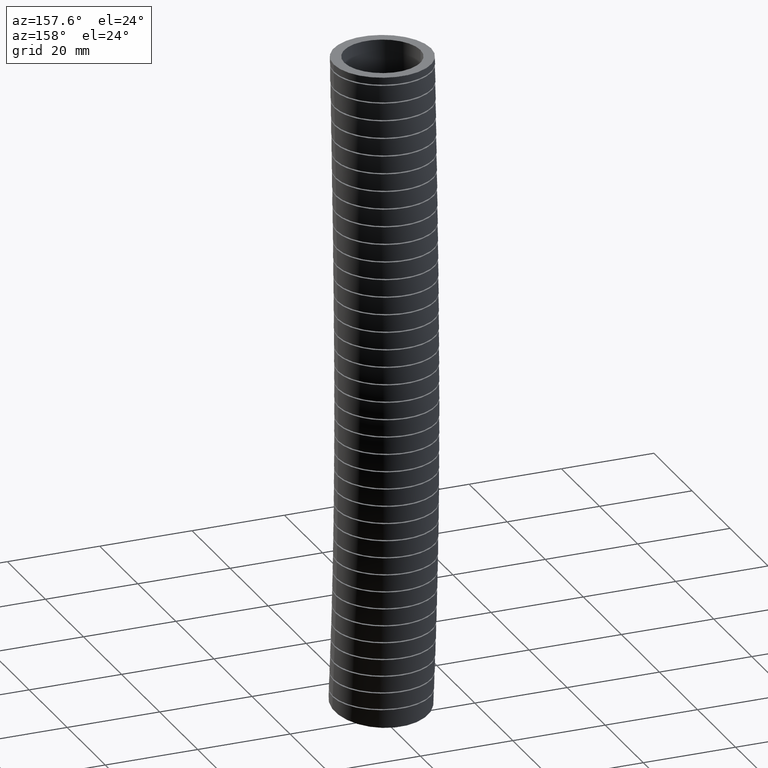
[diagram: clean part render]
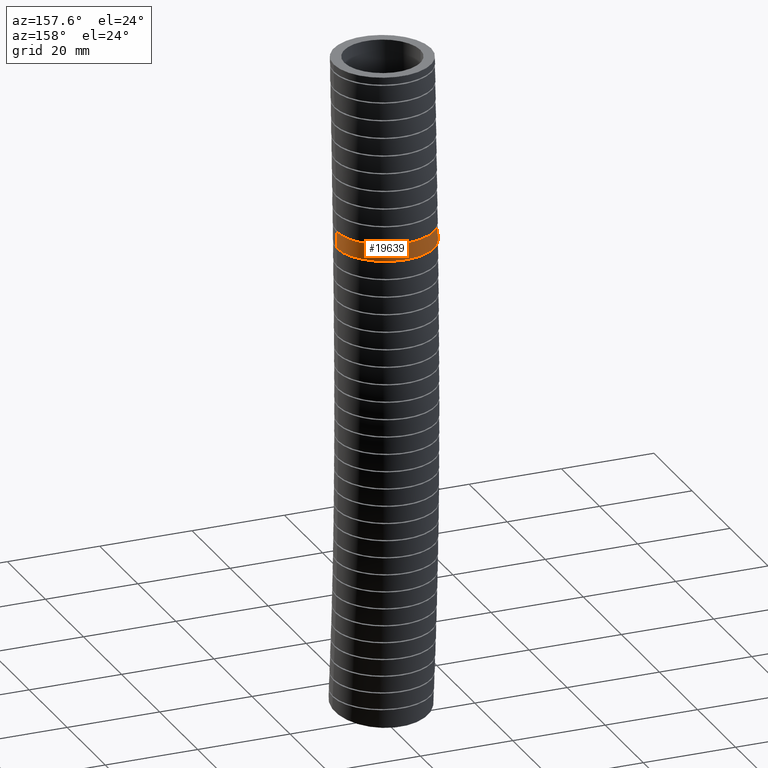
[diagram: same view with one face highlighted and labeled with its STEP entity id]
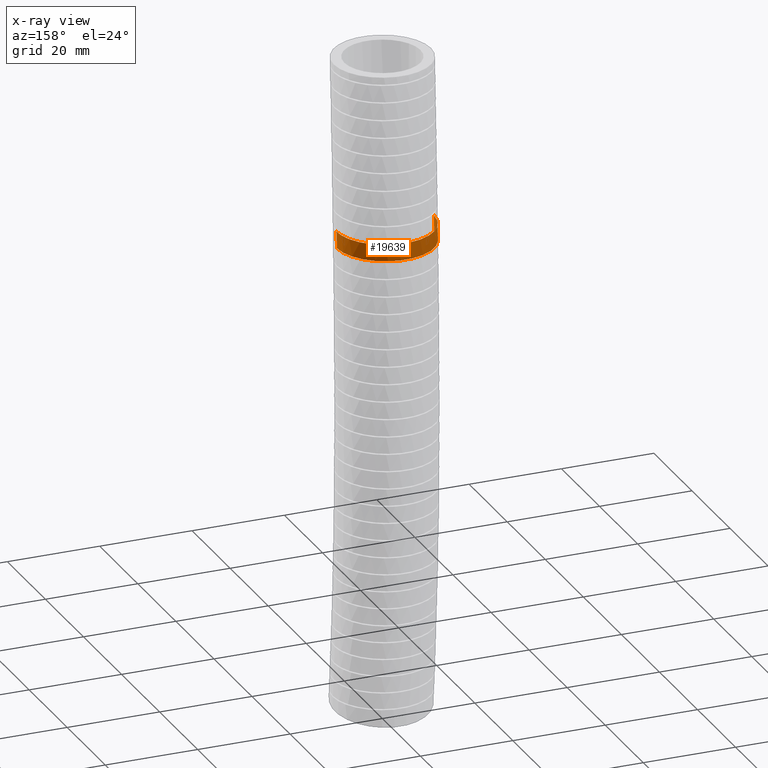
[diagram: x-ray of the same camera — body ghosted, the highlighted face saturated]
A machine part, auxiliary view. The second image highlights one B-rep face of the part: STEP entity #19639.
The next image is the same camera in x-ray: the body ghosted, the highlighted face saturated — about 0% of this face is hidden behind the body in this view.
In plain terms, the highlighted face is a freeform B-spline surface patch.
Its self-contained STEP definition (entity closure, byte-faithful):
#127 = ORIENTED_EDGE ( 'NONE', *, *, #702, .F. ) ;
#128 = EDGE_LOOP ( 'NONE', ( #127, #15384, #15188, #19652 ) ) ;
#677 = VERTEX_POINT ( 'NONE', #9962 ) ;
#699 = VERTEX_POINT ( 'NONE', #10130 ) ;
#702 = EDGE_CURVE ( 'NONE', #706, #703, #10273, .T. ) ;
#703 = VERTEX_POINT ( 'NONE', #10271 ) ;
#706 = VERTEX_POINT ( 'NONE', #10300 ) ;
#707 = EDGE_CURVE ( 'NONE', #677, #699, #10296, .T. ) ;
#5275 = FACE_OUTER_BOUND ( 'NONE', #128, .T. ) ;
#5317 = CARTESIAN_POINT ( 'NONE',  ( 0.4150000000000000400, -0.7627651118616902700, -4.486822042548080700 ) ) ;
#5318 = CARTESIAN_POINT ( 'NONE',  ( 0.4150000000000000400, -0.7092540105308221500, -2.690209918970475100 ) ) ;
#5319 = CARTESIAN_POINT ( 'NONE',  ( 0.4150000000000000900, -0.7836011148550242600, -1.033763039210906500 ) ) ;
#5320 = CARTESIAN_POINT ( 'NONE',  ( 0.4150000000000000900, -0.8300000000000001800, 0.0000000000000000000 ) ) ;
#5321 = CARTESIAN_POINT ( 'NONE',  ( 0.4150000000000000400, -0.03000000000000001600, -5.569999999999998500 ) ) ;
#5323 = CARTESIAN_POINT ( 'NONE',  ( 0.4150000000000000900, -0.01243844818931303500, -5.380037381098891700 ) ) ;
#5324 = CARTESIAN_POINT ( 'NONE',  ( 0.4150000000000000900, 0.06281132015026588700, -4.566063580857106200 ) ) ;
#5325 = CARTESIAN_POINT ( 'NONE',  ( 0.4149999999999999200, 0.1218071073635319700, -2.711443563840852700 ) ) ;
#5326 = CARTESIAN_POINT ( 'NONE',  ( 0.4150000000000000900, 0.04680663936954134600, -1.041922460934817000 ) ) ;
#5327 = CARTESIAN_POINT ( 'NONE',  ( 0.4150000000000000900, 0.0000000000000000000, 0.0000000000000000000 ) ) ;
#5334 =( BOUNDED_SURFACE ( )  B_SPLINE_SURFACE ( 3, 3, ( 
 ( #5327, #5326, #5325, #5324, #5323, #5321 ),
 ( #5320, #5319, #5318, #5317, #5368, #5367 ),
 ( #5366, #5365, #5364, #5363, #5362, #5361 ),
 ( #5360, #5359, #5358, #5357, #5356, #5355 ),
 ( #5354, #5353, #5352, #5351, #5350, #5349 ),
 ( #5348, #5347, #5346, #5345, #5344, #5343 ),
 ( #5342, #5341, #5340, #5339, #5338, #5337 ) ),
 .UNSPECIFIED., .F., .F., .F. ) 
 B_SPLINE_SURFACE_WITH_KNOTS ( ( 4, 3, 4 ),
 ( 4, 1, 1, 4 ),
 ( 0.0000000000000000000, 0.5000000000000000000, 1.000000000000000000 ),
 ( 0.0000000000000000000, 0.5600000000000000500, 0.8973141982067990300, 1.000000000000000000 ),
 .UNSPECIFIED. ) 
 GEOMETRIC_REPRESENTATION_ITEM ( )  RATIONAL_B_SPLINE_SURFACE ( (
 ( 1.000000000000000000, 1.000000000000000000, 1.000000000000000000, 1.000000000000000000, 1.000000000000000000, 1.000000000000000000),
 ( 0.3333333333333333100, 0.3333333333333333100, 0.3333333333333333100, 0.3333333333333333100, 0.3333333333333332600, 0.3333333333333333100),
 ( 0.3333333333333333100, 0.3333333333333333100, 0.3333333333333333100, 0.3333333333333333100, 0.3333333333333332600, 0.3333333333333333100),
 ( 1.000000000000000000, 1.000000000000000000, 1.000000000000000000, 1.000000000000000000, 1.000000000000000000, 1.000000000000000000),
 ( 0.3333333333333333100, 0.3333333333333333100, 0.3333333333333333100, 0.3333333333333333100, 0.3333333333333332600, 0.3333333333333333100),
 ( 0.3333333333333333100, 0.3333333333333333100, 0.3333333333333333100, 0.3333333333333333100, 0.3333333333333332600, 0.3333333333333333100),
 ( 1.000000000000000000, 1.000000000000000000, 1.000000000000000000, 1.000000000000000000, 1.000000000000000000, 1.000000000000000000) ) ) 
 REPRESENTATION_ITEM ( '' )  SURFACE ( )  );
#5337 = CARTESIAN_POINT ( 'NONE',  ( 0.4150000000000000400, -0.03000000000000001600, -5.569999999999998500 ) ) ;
#5338 = CARTESIAN_POINT ( 'NONE',  ( 0.4150000000000000900, -0.01243844818931303500, -5.380037381098891700 ) ) ;
#5339 = CARTESIAN_POINT ( 'NONE',  ( 0.4150000000000000900, 0.06281132015026588700, -4.566063580857106200 ) ) ;
#5340 = CARTESIAN_POINT ( 'NONE',  ( 0.4149999999999999200, 0.1218071073635319700, -2.711443563840852700 ) ) ;
#5341 = CARTESIAN_POINT ( 'NONE',  ( 0.4150000000000000900, 0.04680663936954134600, -1.041922460934817000 ) ) ;
#5342 = CARTESIAN_POINT ( 'NONE',  ( 0.4150000000000000900, 0.0000000000000000000, 0.0000000000000000000 ) ) ;
#5343 = CARTESIAN_POINT ( 'NONE',  ( 0.4150000000000000400, 0.7922141346493595200, -5.683419208173947200 ) ) ;
#5344 = CARTESIAN_POINT ( 'NONE',  ( 0.4150000000000002000, 0.8104118928973711400, -5.486989566509566700 ) ) ;
#5345 = CARTESIAN_POINT ( 'NONE',  ( 0.4150000000000000400, 0.8883877521622221000, -4.645305119166129900 ) ) ;
#5346 = CARTESIAN_POINT ( 'NONE',  ( 0.4150000000000000400, 0.9528682252578860600, -2.732677208711230800 ) ) ;
#5347 = CARTESIAN_POINT ( 'NONE',  ( 0.4150000000000000900, 0.8772143935941071300, -1.050081882658727000 ) ) ;
#5348 = CARTESIAN_POINT ( 'NONE',  ( 0.4150000000000000900, 0.8300000000000001800, 0.0000000000000000000 ) ) ;
#5349 = CARTESIAN_POINT ( 'NONE',  ( -0.4149999999999999200, 0.7922141346493595200, -5.683419208173947200 ) ) ;
#5350 = CARTESIAN_POINT ( 'NONE',  ( -0.4150000000000000400, 0.8104118928973711400, -5.486989566509566700 ) ) ;
#5351 = CARTESIAN_POINT ( 'NONE',  ( -0.4149999999999999200, 0.8883877521622221000, -4.645305119166129900 ) ) ;
#5352 = CARTESIAN_POINT ( 'NONE',  ( -0.4149999999999999200, 0.9528682252578860600, -2.732677208711230800 ) ) ;
#5353 = CARTESIAN_POINT ( 'NONE',  ( -0.4149999999999999200, 0.8772143935941071300, -1.050081882658727000 ) ) ;
#5354 = CARTESIAN_POINT ( 'NONE',  ( -0.4150000000000000400, 0.8300000000000001800, 0.0000000000000000000 ) ) ;
#5355 = CARTESIAN_POINT ( 'NONE',  ( -0.4150000000000000400, -0.02999999999999996800, -5.569999999999998500 ) ) ;
#5356 = CARTESIAN_POINT ( 'NONE',  ( -0.4150000000000000900, -0.01243844818931298000, -5.380037381098891700 ) ) ;
#5357 = CARTESIAN_POINT ( 'NONE',  ( -0.4150000000000000900, 0.06281132015026594200, -4.566063580857106200 ) ) ;
#5358 = CARTESIAN_POINT ( 'NONE',  ( -0.4149999999999999200, 0.1218071073635320100, -2.711443563840852700 ) ) ;
#5359 = CARTESIAN_POINT ( 'NONE',  ( -0.4150000000000000900, 0.04680663936954139500, -1.041922460934817000 ) ) ;
#5360 = CARTESIAN_POINT ( 'NONE',  ( -0.4150000000000000900, 5.082284216461516900E-017, 0.0000000000000000000 ) ) ;
#5361 = CARTESIAN_POINT ( 'NONE',  ( -0.4150000000000000900, -0.8522141346493592500, -5.456580791826050700 ) ) ;
#5362 = CARTESIAN_POINT ( 'NONE',  ( -0.4150000000000002000, -0.8352887892759974800, -5.273085195688222100 ) ) ;
#5363 = CARTESIAN_POINT ( 'NONE',  ( -0.4150000000000000900, -0.7627651118616902700, -4.486822042548080700 ) ) ;
#5364 = CARTESIAN_POINT ( 'NONE',  ( -0.4150000000000000400, -0.7092540105308221500, -2.690209918970475100 ) ) ;
#5365 = CARTESIAN_POINT ( 'NONE',  ( -0.4150000000000000900, -0.7836011148550242600, -1.033763039210906500 ) ) ;
#5366 = CARTESIAN_POINT ( 'NONE',  ( -0.4150000000000000900, -0.8300000000000001800, 0.0000000000000000000 ) ) ;
#5367 = CARTESIAN_POINT ( 'NONE',  ( 0.4150000000000000400, -0.8522141346493592500, -5.456580791826050700 ) ) ;
#5368 = CARTESIAN_POINT ( 'NONE',  ( 0.4150000000000002000, -0.8352887892759974800, -5.273085195688222100 ) ) ;
#5631 = CARTESIAN_POINT ( 'NONE',  ( -0.2530480296697572600, 0.3930098631821943900, -1.558745690570982400 ) ) ;
#5632 = CARTESIAN_POINT ( 'NONE',  ( -0.2420183854522029200, 0.4012025832483722100, -1.558745690570981100 ) ) ;
#5633 = CARTESIAN_POINT ( 'NONE',  ( -0.2079953799857171800, 0.4239492426593599600, -1.558745690570980900 ) ) ;
#5634 = CARTESIAN_POINT ( 'NONE',  ( -0.1841409775019460200, 0.4366920484936032700, -1.558745690570980900 ) ) ;
#5635 = CARTESIAN_POINT ( 'NONE',  ( -0.1466424309258130600, 0.4522598473942761000, -1.558745690570981300 ) ) ;
#5636 = CARTESIAN_POINT ( 'NONE',  ( -0.1338547111090290000, 0.4568538169216500600, -1.558745690570982700 ) ) ;
#5637 = CARTESIAN_POINT ( 'NONE',  ( -0.1076844076745166300, 0.4648130424854946000, -1.558745690570982700 ) ) ;
#5638 = CARTESIAN_POINT ( 'NONE',  ( -0.09441587613805650600, 0.4681382022034298900, -1.558745690570981300 ) ) ;
#5639 = CARTESIAN_POINT ( 'NONE',  ( -0.05452458177354133100, 0.4760878549364622700, -1.558745690570981100 ) ) ;
#5640 = CARTESIAN_POINT ( 'NONE',  ( -0.02763124873732881000, 0.4787633537436413700, -1.558745690570982200 ) ) ;
#5641 = CARTESIAN_POINT ( 'NONE',  ( 0.01316132861774301100, 0.4788062237595002700, -1.558745690570982000 ) ) ;
#5642 = CARTESIAN_POINT ( 'NONE',  ( 0.02690503160815264900, 0.4781431039985693000, -1.558745690570981100 ) ) ;
#5643 = CARTESIAN_POINT ( 'NONE',  ( 0.05401535565871507700, 0.4754877283855035200, -1.558745690570981100 ) ) ;
#5644 = CARTESIAN_POINT ( 'NONE',  ( 0.06742087615956440800, 0.4735027468085092300, -1.558745690570981300 ) ) ;
#5645 = CARTESIAN_POINT ( 'NONE',  ( 0.1071986118086044000, 0.4656202789456790300, -1.558745690570981300 ) ) ;
#5646 = CARTESIAN_POINT ( 'NONE',  ( 0.1331363142419370300, 0.4578142147985411700, -1.558745690570981100 ) ) ;
#5647 = CARTESIAN_POINT ( 'NONE',  ( 0.1838011139505479600, 0.4368845569489011600, -1.558745690570981100 ) ) ;
#5648 = CARTESIAN_POINT ( 'NONE',  ( 0.2076944669633723800, 0.4241039006592391400, -1.558745690570980000 ) ) ;
#5649 = CARTESIAN_POINT ( 'NONE',  ( 0.2414360814785000100, 0.4016144037911879000, -1.558745690570980400 ) ) ;
#5650 = CARTESIAN_POINT ( 'NONE',  ( 0.2523326078176387800, 0.3935600190301745100, -1.558745690570981600 ) ) ;
#5651 = CARTESIAN_POINT ( 'NONE',  ( 0.2734084412545565400, 0.3763102430458227200, -1.558745690570982200 ) ) ;
#5652 = CARTESIAN_POINT ( 'NONE',  ( 0.2836137943189495100, 0.3670791682988576700, -1.558745690570980400 ) ) ;
#5653 = CARTESIAN_POINT ( 'NONE',  ( 0.3124862738769199600, 0.3382524385800725900, -1.558745690570981300 ) ) ;
#5654 = CARTESIAN_POINT ( 'NONE',  ( 0.3296487723175474700, 0.3173742912554553500, -1.558745690570980900 ) ) ;
#5655 = CARTESIAN_POINT ( 'NONE',  ( 0.3522929406101922300, 0.2835897846059329300, -1.558745690570980400 ) ) ;
#5656 = CARTESIAN_POINT ( 'NONE',  ( 0.3593417700886814600, 0.2718743705796292700, -1.558745690570980900 ) ) ;
#5657 = CARTESIAN_POINT ( 'NONE',  ( 0.3722644896321220500, 0.2477587841385151800, -1.558745690570981100 ) ) ;
#5658 = CARTESIAN_POINT ( 'NONE',  ( 0.3780806080155281200, 0.2354763999878228500, -1.558745690570982400 ) ) ;
#5659 = CARTESIAN_POINT ( 'NONE',  ( 0.3936540415104261000, 0.1979766384407226600, -1.558745690570982400 ) ) ;
#5660 = CARTESIAN_POINT ( 'NONE',  ( 0.4015541706315150500, 0.1721128252505605700, -1.558745690570982700 ) ) ;
#5661 = CARTESIAN_POINT ( 'NONE',  ( 0.4095936908385555100, 0.1319907139541683400, -1.558745690570982200 ) ) ;
#5662 = CARTESIAN_POINT ( 'NONE',  ( 0.4116257368884618800, 0.1183970458522912200, -1.558745690570980200 ) ) ;
#5663 = CARTESIAN_POINT ( 'NONE',  ( 0.4143224466391948700, 0.09120927082526174300, -1.558745690570980400 ) ) ;
#5664 = CARTESIAN_POINT ( 'NONE',  ( 0.4150000000000000900, 0.07755948595522385600, -1.558745690378915900 ) ) ;
#5665 = CARTESIAN_POINT ( 'NONE',  ( 0.4150000000000000900, 0.06385324110268690600, -1.558745690378915900 ) ) ;
#5666 = B_SPLINE_CURVE_WITH_KNOTS ( 'NONE', 3,
 ( #5665, #5664, #5663, #5662, #5661, #5660, #5659, #5658, #5657, #5656, #5655, #5654, #5653, #5652, #5651, #5650, #5649, #5648, #5647, #5646, #5645, #5644, #5643, #5642, #5641, #5640, #5639, #5638, #5637, #5636, #5635, #5634, #5633, #5632, #5631, #5709, #5708, #5707, #5706, #5705, #5704, #5703, #5702, #5701, #5700, #5699, #5698, #5697, #5696 ),
 .UNSPECIFIED., .F., .F.,
 ( 4, 2, 2, 2, 2, 2, 2, 2, 2, 2, 2, 2, 2, 2, 2, 2, 2, 2, 1, 2, 2, 2, 2, 2, 4 ),
 ( 0.0000000000000000000, 0.001040808548537697300, 0.002081617097075394600, 0.004163234194150791000, 0.005204042742688487800, 0.006244851291226185600, 0.008326468388301581900, 0.009367276936839280500, 0.01040808548537697600, 0.01248970258245237300, 0.01457131967952776800, 0.01561212822806546500, 0.01665293677660316400, 0.01873455387367856100, 0.01977536242221625600, 0.02081617097075395100, 0.02289778806782934500, 0.02393859661636704400, 0.02497940516490474200, 0.02602021371344244100, 0.02706102226198013600, 0.02914263935905553300, 0.03018344790759323200, 0.03122425645613092700, 0.03330587355320632800 ),
 .UNSPECIFIED. ) ;
#5696 = CARTESIAN_POINT ( 'NONE',  ( -0.4150000000000000900, 0.06385324111537978000, -1.558745690570981600 ) ) ;
#5697 = CARTESIAN_POINT ( 'NONE',  ( -0.4150000000000000400, 0.09103404013532480400, -1.558745690570981300 ) ) ;
#5698 = CARTESIAN_POINT ( 'NONE',  ( -0.4123543557392044800, 0.1179288235226030600, -1.558745690570981100 ) ) ;
#5699 = CARTESIAN_POINT ( 'NONE',  ( -0.4044404088867445400, 0.1578444601202371500, -1.558745690570982000 ) ) ;
#5700 = CARTESIAN_POINT ( 'NONE',  ( -0.4011218134241089600, 0.1711363851670459100, -1.558745690570982400 ) ) ;
#5701 = CARTESIAN_POINT ( 'NONE',  ( -0.3931921010271234900, 0.1972941505919999200, -1.558745690570982400 ) ) ;
#5702 = CARTESIAN_POINT ( 'NONE',  ( -0.3886123362093592000, 0.2100797063785178600, -1.558745690570981100 ) ) ;
#5703 = CARTESIAN_POINT ( 'NONE',  ( -0.3730830397548043400, 0.2475824976204930900, -1.558745690570981300 ) ) ;
#5704 = CARTESIAN_POINT ( 'NONE',  ( -0.3603605524434012100, 0.2714539884862736100, -1.558745690570982900 ) ) ;
#5705 = CARTESIAN_POINT ( 'NONE',  ( -0.3376260681695171800, 0.3055197233466000500, -1.558745690570982400 ) ) ;
#5706 = CARTESIAN_POINT ( 'NONE',  ( -0.3294499711217612200, 0.3165447876002900300, -1.558745690570982200 ) ) ;
#5707 = CARTESIAN_POINT ( 'NONE',  ( -0.3122300736977493600, 0.3375308369935001200, -1.558745690570982700 ) ) ;
#5708 = CARTESIAN_POINT ( 'NONE',  ( -0.2940636023942566100, 0.3575757523175059900, -1.558745690570981100 ) ) ;
#5709 = CARTESIAN_POINT ( 'NONE',  ( -0.2740297446776663900, 0.3757640128025892000, -1.558745690570982200 ) ) ;
#9962 = CARTESIAN_POINT ( 'NONE',  ( 0.4150000000000000900, 0.05908527017593824500, -1.418832748670765700 ) ) ;
#10130 = CARTESIAN_POINT ( 'NONE',  ( 0.4150000000000000900, 0.06385324110268690600, -1.558745690378915900 ) ) ;
#10265 = CARTESIAN_POINT ( 'NONE',  ( -0.4150000000000000900, 0.06385324111537978000, -1.558745690570981600 ) ) ;
#10266 = CARTESIAN_POINT ( 'NONE',  ( -0.4149999999999999200, 0.06231226543439481700, -1.512110062923618200 ) ) ;
#10267 = CARTESIAN_POINT ( 'NONE',  ( -0.4150000000000000400, 0.06072145016293117200, -1.465472353379295000 ) ) ;
#10268 = CARTESIAN_POINT ( 'NONE',  ( -0.4150000000000000900, 0.05908527018941434800, -1.418832748862834900 ) ) ;
#10271 = CARTESIAN_POINT ( 'NONE',  ( -0.4150000000000000900, 0.06385324111537978000, -1.558745690570981600 ) ) ;
#10273 = B_SPLINE_CURVE_WITH_KNOTS ( 'NONE', 3,
 ( #10268, #10267, #10266, #10265 ),
 .UNSPECIFIED., .F., .F.,
 ( 4, 4 ),
 ( 0.2542272988699750300, 0.2793049196998993500 ),
 .UNSPECIFIED. ) ;
#10296 = B_SPLINE_CURVE_WITH_KNOTS ( 'NONE', 3,
 ( #10350, #10349, #10348, #10347 ),
 .UNSPECIFIED., .F., .F.,
 ( 4, 4 ),
 ( 0.2542272988355082600, 0.2793049196654349700 ),
 .UNSPECIFIED. ) ;
#10300 = CARTESIAN_POINT ( 'NONE',  ( -0.4150000000000000900, 0.05908527018941434800, -1.418832748862834900 ) ) ;
#10347 = CARTESIAN_POINT ( 'NONE',  ( 0.4150000000000000900, 0.06385324110268690600, -1.558745690378915900 ) ) ;
#10348 = CARTESIAN_POINT ( 'NONE',  ( 0.4150000000000000900, 0.06231226542790428000, -1.512110062731332200 ) ) ;
#10349 = CARTESIAN_POINT ( 'NONE',  ( 0.4150000000000000900, 0.06072145015630964200, -1.465472353186999300 ) ) ;
#10350 = CARTESIAN_POINT ( 'NONE',  ( 0.4150000000000000900, 0.05908527017593824500, -1.418832748670765700 ) ) ;
#15188 = ORIENTED_EDGE ( 'NONE', *, *, #707, .T. ) ;
#15226 = EDGE_CURVE ( 'NONE', #706, #677, #15950, .T. ) ;
#15384 = ORIENTED_EDGE ( 'NONE', *, *, #15226, .T. ) ;
#15917 = CARTESIAN_POINT ( 'NONE',  ( 0.2075406508687024100, 0.4186845661983060700, -1.418832748862834300 ) ) ;
#15918 = CARTESIAN_POINT ( 'NONE',  ( 0.1834488923573311100, 0.4315491679798713100, -1.418832748862834100 ) ) ;
#15919 = CARTESIAN_POINT ( 'NONE',  ( 0.1711728334796850900, 0.4373422404948635900, -1.418832748862833800 ) ) ;
#15920 = CARTESIAN_POINT ( 'NONE',  ( 0.1336734067975987000, 0.4528573395961156800, -1.418832748862833600 ) ) ;
#15921 = CARTESIAN_POINT ( 'NONE',  ( 0.1077852262346627500, 0.4607331246419718000, -1.418832748862834900 ) ) ;
#15922 = CARTESIAN_POINT ( 'NONE',  ( 0.06757918351784343600, 0.4687317209484308000, -1.418832748862834900 ) ) ;
#15923 = CARTESIAN_POINT ( 'NONE',  ( 0.05401970958160927400, 0.4707356533903930800, -1.418832748862834500 ) ) ;
#15924 = CARTESIAN_POINT ( 'NONE',  ( 0.02701520612460219300, 0.4733845586806245100, -1.418832748862834500 ) ) ;
#15925 = CARTESIAN_POINT ( 'NONE',  ( -3.141919472672733100E-007, 0.4747009195132181300, -1.418832748862831600 ) ) ;
#15926 = CARTESIAN_POINT ( 'NONE',  ( -0.02703760670074020800, 0.4733838244153256200, -1.418832748862834100 ) ) ;
#15927 = CARTESIAN_POINT ( 'NONE',  ( -0.05408596979859525000, 0.4707276860048825200, -1.418832748862834100 ) ) ;
#15928 = CARTESIAN_POINT ( 'NONE',  ( -0.06769021407858082100, 0.4687123141075830700, -1.418832748862832700 ) ) ;
#15929 = CARTESIAN_POINT ( 'NONE',  ( -0.1077994571987883600, 0.4607249065735786700, -1.418832748862832700 ) ) ;
#15930 = CARTESIAN_POINT ( 'NONE',  ( -0.1336714596217841200, 0.4528597067144449800, -1.418832748862834500 ) ) ;
#15931 = CARTESIAN_POINT ( 'NONE',  ( -0.1837154728501669000, 0.4321512572490561200, -1.418832748862834900 ) ) ;
#15932 = CARTESIAN_POINT ( 'NONE',  ( -0.2080895273361324500, 0.4191293959363949800, -1.418832748862834900 ) ) ;
#15933 = CARTESIAN_POINT ( 'NONE',  ( -0.2531615865203227800, 0.3890041836772727400, -1.418832748862834500 ) ) ;
#15934 = CARTESIAN_POINT ( 'NONE',  ( -0.2740667689532872400, 0.3718678634584195500, -1.418832748862833800 ) ) ;
#15935 = CARTESIAN_POINT ( 'NONE',  ( -0.3029482121341942100, 0.3430145893553107100, -1.418832748862834100 ) ) ;
#15936 = CARTESIAN_POINT ( 'NONE',  ( -0.3121937266000017800, 0.3328183542882893800, -1.418832748862834500 ) ) ;
#15937 = CARTESIAN_POINT ( 'NONE',  ( -0.3294617959961215800, 0.3117746700324480200, -1.418832748862834300 ) ) ;
#15938 = CARTESIAN_POINT ( 'NONE',  ( -0.3375282819760183100, 0.3008914116068094900, -1.418832748862835600 ) ) ;
#15939 = CARTESIAN_POINT ( 'NONE',  ( -0.3600603646152695200, 0.2671798479957746600, -1.418832748862835400 ) ) ;
#15940 = CARTESIAN_POINT ( 'NONE',  ( -0.3728936815753253800, 0.2432551594121166200, -1.418832748862835200 ) ) ;
#15941 = CARTESIAN_POINT ( 'NONE',  ( -0.3938679471605016100, 0.1926503495636997500, -1.418832748862835200 ) ) ;
#15942 = CARTESIAN_POINT ( 'NONE',  ( -0.4017049477336311900, 0.1667283083353255900, -1.418832748862836100 ) ) ;
#15943 = CARTESIAN_POINT ( 'NONE',  ( -0.4096353499487643300, 0.1269508873472916200, -1.418832748862835600 ) ) ;
#15944 = CARTESIAN_POINT ( 'NONE',  ( -0.4116365967719843900, 0.1135415872693664600, -1.418832748862834900 ) ) ;
#15945 = CARTESIAN_POINT ( 'NONE',  ( -0.4143231988795148500, 0.08641531409861176500, -1.418832748862834900 ) ) ;
#15946 = CARTESIAN_POINT ( 'NONE',  ( -0.4150000000000000900, 0.07267675005476742500, -1.418832748862834900 ) ) ;
#15947 = CARTESIAN_POINT ( 'NONE',  ( -0.4150000000000000900, 0.05908527018941434800, -1.418832748862834900 ) ) ;
#15950 = B_SPLINE_CURVE_WITH_KNOTS ( 'NONE', 3,
 ( #15947, #15946, #15945, #15944, #15943, #15942, #15941, #15940, #15939, #15938, #15937, #15936, #15935, #15934, #15933, #15932, #15931, #15930, #15929, #15928, #15927, #15926, #15925, #15924, #15923, #15922, #15921, #15920, #15919, #15918, #15917, #15992, #15991, #15990, #15989, #15988, #15987, #15986, #15985, #15984, #15983, #15982, #15981, #15980, #15979, #15978, #15977, #15976 ),
 .UNSPECIFIED., .F., .F.,
 ( 4, 2, 2, 2, 2, 2, 2, 2, 2, 2, 2, 1, 2, 2, 2, 2, 2, 2, 2, 2, 2, 2, 1, 2, 4 ),
 ( 0.03330652396882859100, 0.03434741441095347900, 0.03538830485307837400, 0.03747008573732815700, 0.03955186662157794000, 0.04059275706370282800, 0.04163364750582772300, 0.04371542839007749900, 0.04579720927432727500, 0.04787899015857705100, 0.04891988060070193900, 0.04996077104282682600, 0.05100166148495172100, 0.05204255192707660200, 0.05412433281132637800, 0.05516522325345127300, 0.05620611369557616100, 0.05828789457982593000, 0.05932878502195082500, 0.06036967546407570600, 0.06245145634832548200, 0.06349234679045037700, 0.06453323723257525800, 0.06557412767470016700, 0.06661501811682504800 ),
 .UNSPECIFIED. ) ;
#15976 = CARTESIAN_POINT ( 'NONE',  ( 0.4150000000000000900, 0.05908527017593824500, -1.418832748670765700 ) ) ;
#15977 = CARTESIAN_POINT ( 'NONE',  ( 0.4150000000000001500, 0.07279259193946806300, -1.418832748670765500 ) ) ;
#15978 = CARTESIAN_POINT ( 'NONE',  ( 0.4143161010532069300, 0.08650862150663417300, -1.418832748862835400 ) ) ;
#15979 = CARTESIAN_POINT ( 'NONE',  ( 0.4116308276513374600, 0.1135780917256102200, -1.418832748862835400 ) ) ;
#15980 = CARTESIAN_POINT ( 'NONE',  ( 0.4076329018602266000, 0.1403637002892749500, -1.418832748862831800 ) ) ;
#15981 = CARTESIAN_POINT ( 'NONE',  ( 0.4010594200870052900, 0.1665923437413652800, -1.418832748862834500 ) ) ;
#15982 = CARTESIAN_POINT ( 'NONE',  ( 0.3931857185142784200, 0.1925398140911316600, -1.418832748862834500 ) ) ;
#15983 = CARTESIAN_POINT ( 'NONE',  ( 0.3885816068672299800, 0.2054139110569749000, -1.418832748862836300 ) ) ;
#15984 = CARTESIAN_POINT ( 'NONE',  ( 0.3728565572315900600, 0.2433263059649695700, -1.418832748862836500 ) ) ;
#15985 = CARTESIAN_POINT ( 'NONE',  ( 0.3600601825297664000, 0.2671819355304587700, -1.418832748862834500 ) ) ;
#15986 = CARTESIAN_POINT ( 'NONE',  ( 0.3375154701078675300, 0.3009096718580006000, -1.418832748862834900 ) ) ;
#15987 = CARTESIAN_POINT ( 'NONE',  ( 0.3294381202342990300, 0.3118071245717364300, -1.418832748862834300 ) ) ;
#15988 = CARTESIAN_POINT ( 'NONE',  ( 0.3121289750098797400, 0.3328936430417261400, -1.418832748862833800 ) ) ;
#15989 = CARTESIAN_POINT ( 'NONE',  ( 0.3028932180250721300, 0.3430720357373032200, -1.418832748862833600 ) ) ;
#15990 = CARTESIAN_POINT ( 'NONE',  ( 0.2740615686171909400, 0.3718680318528550500, -1.418832748862834300 ) ) ;
#15991 = CARTESIAN_POINT ( 'NONE',  ( 0.2531642605538143600, 0.3890053142080643300, -1.418832748862835600 ) ) ;
#15992 = CARTESIAN_POINT ( 'NONE',  ( 0.2193099212241275400, 0.4116284597875371500, -1.418832748862835400 ) ) ;
#19639 = ADVANCED_FACE ( 'NONE', ( #5275 ), #5334, .T. ) ;
#19652 = ORIENTED_EDGE ( 'NONE', *, *, #19656, .T. ) ;
#19656 = EDGE_CURVE ( 'NONE', #699, #703, #5666, .T. ) ;